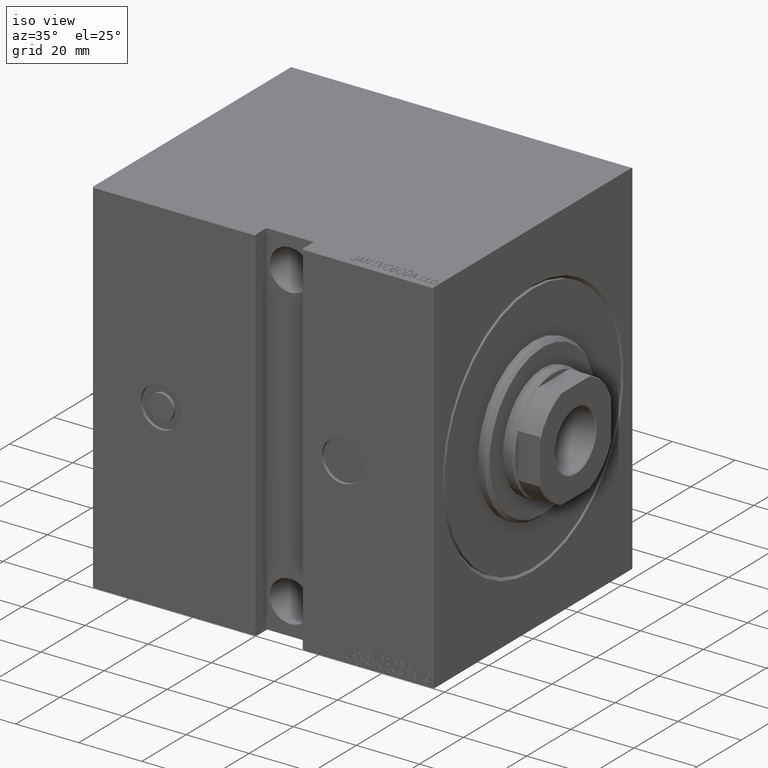
[diagram: clean part render]
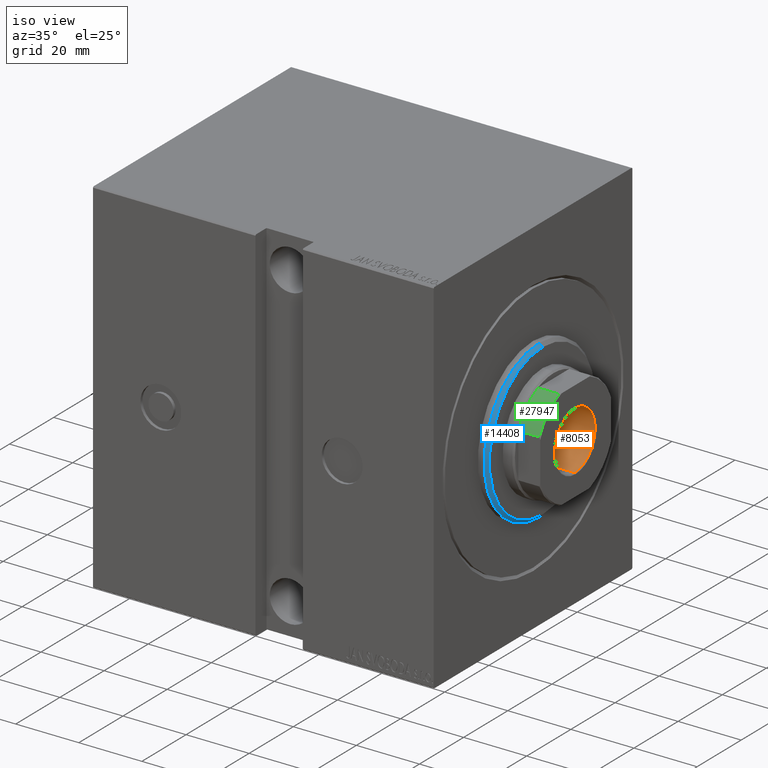
[diagram: same view with three faces highlighted in distinct colors, each labeled with its STEP entity id]
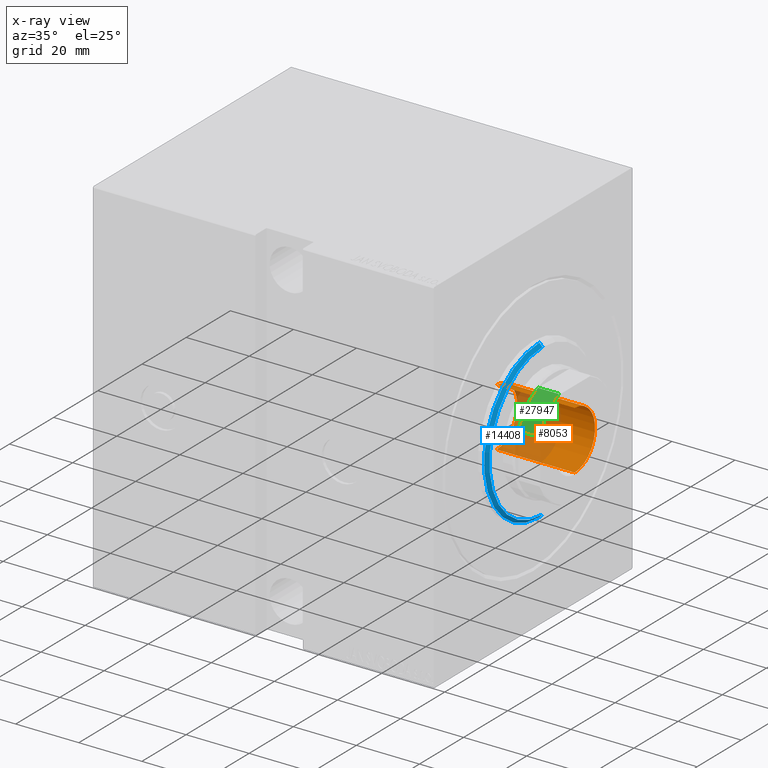
[diagram: x-ray of the same camera — body ghosted, the three highlighted faces saturated]
A machine part, iso view with three faces highlighted in distinct colors.
The next image is the same camera in x-ray (body ghosted, the three faces saturated) — at least one of them is partly hidden behind the body in this view.
Their STEP definitions:

[orange] entity #8053 — the highlighted cylindrical surface (edge-blend (fillet) strip) has radius 9.25 mm, axis along (1, 0, -0).
#326 = CARTESIAN_POINT ( 'NONE',  ( -9.249999999999994671, 1.132798289211300909E-15, 104.0000000000000142 ) ) ;
#754 = DIRECTION ( 'NONE',  ( -0.000000000000000000, -0.000000000000000000, 1.000000000000000000 ) ) ;
#898 = LINE ( 'NONE', #18254, #6088 ) ;
#1081 = DIRECTION ( 'NONE',  ( 0.000000000000000000, 0.000000000000000000, 1.000000000000000000 ) ) ;
#3494 = VECTOR ( 'NONE', #754, 1000.000000000000000 ) ;
#4088 = CARTESIAN_POINT ( 'NONE',  ( -9.249999999999994671, 1.132798289211300909E-15, 79.00000000000001421 ) ) ;
#4434 = VERTEX_POINT ( 'NONE', #7482 ) ;
#6088 = VECTOR ( 'NONE', #25115, 1000.000000000000000 ) ;
#7263 = EDGE_CURVE ( 'NONE', #4434, #11384, #20773, .T. ) ;
#7482 = CARTESIAN_POINT ( 'NONE',  ( 9.249999999999994671, 0.000000000000000000, 103.6999999999999886 ) ) ;
#8053 = ADVANCED_FACE ( 'NONE', ( #31880 ), #24998, .F. ) ;
#8153 = CARTESIAN_POINT ( 'NONE',  ( -9.249999999999994671, 1.132798289211300909E-15, 103.6999999999999886 ) ) ;
#8967 = CIRCLE ( 'NONE', #15827, 9.249999999999994671 ) ;
#10410 = EDGE_LOOP ( 'NONE', ( #19767, #28411, #16762, #40401 ) ) ;
#10976 = DIRECTION ( 'NONE',  ( 1.000000000000000000, 0.000000000000000000, 0.000000000000000000 ) ) ;
#11384 = VERTEX_POINT ( 'NONE', #8153 ) ;
#12188 = CARTESIAN_POINT ( 'NONE',  ( 0.000000000000000000, 0.000000000000000000, 79.00000000000001421 ) ) ;
#15616 = DIRECTION ( 'NONE',  ( 1.000000000000000000, 0.000000000000000000, 0.000000000000000000 ) ) ;
#15827 = AXIS2_PLACEMENT_3D ( 'NONE', #12188, #34547, #15616 ) ;
#16762 = ORIENTED_EDGE ( 'NONE', *, *, #29061, .T. ) ;
#18254 = CARTESIAN_POINT ( 'NONE',  ( 9.249999999999994671, 0.000000000000000000, 104.0000000000000142 ) ) ;
#19767 = ORIENTED_EDGE ( 'NONE', *, *, #35238, .F. ) ;
#20773 = CIRCLE ( 'NONE', #30412, 9.249999999999994671 ) ;
#21776 = DIRECTION ( 'NONE',  ( 1.000000000000000000, 0.000000000000000000, 0.000000000000000000 ) ) ;
#24998 = CYLINDRICAL_SURFACE ( 'NONE', #35937, 9.249999999999994671 ) ;
#25115 = DIRECTION ( 'NONE',  ( -0.000000000000000000, -0.000000000000000000, 1.000000000000000000 ) ) ;
#28411 = ORIENTED_EDGE ( 'NONE', *, *, #41366, .F. ) ;
#29061 = EDGE_CURVE ( 'NONE', #40145, #4434, #898, .T. ) ;
#30412 = AXIS2_PLACEMENT_3D ( 'NONE', #30524, #1081, #10976 ) ;
#30524 = CARTESIAN_POINT ( 'NONE',  ( 0.000000000000000000, 0.000000000000000000, 103.6999999999999886 ) ) ;
#31462 = CARTESIAN_POINT ( 'NONE',  ( 0.000000000000000000, 0.000000000000000000, 104.0000000000000142 ) ) ;
#31880 = FACE_OUTER_BOUND ( 'NONE', #10410, .T. ) ;
#32814 = CARTESIAN_POINT ( 'NONE',  ( 9.249999999999994671, 0.000000000000000000, 79.00000000000001421 ) ) ;
#34547 = DIRECTION ( 'NONE',  ( -0.000000000000000000, -0.000000000000000000, 1.000000000000000000 ) ) ;
#35238 = EDGE_CURVE ( 'NONE', #35462, #11384, #36646, .T. ) ;
#35462 = VERTEX_POINT ( 'NONE', #4088 ) ;
#35937 = AXIS2_PLACEMENT_3D ( 'NONE', #31462, #38116, #21776 ) ;
#36646 = LINE ( 'NONE', #326, #3494 ) ;
#38116 = DIRECTION ( 'NONE',  ( -0.000000000000000000, -0.000000000000000000, 1.000000000000000000 ) ) ;
#40145 = VERTEX_POINT ( 'NONE', #32814 ) ;
#40401 = ORIENTED_EDGE ( 'NONE', *, *, #7263, .T. ) ;
#41366 = EDGE_CURVE ( 'NONE', #40145, #35462, #8967, .T. ) ;

[blue] entity #14408 — the highlighted conical surface has half-angle 45 deg.
#295 = FACE_OUTER_BOUND ( 'NONE', #20194, .T. ) ;
#458 = AXIS2_PLACEMENT_3D ( 'NONE', #33120, #20436, #13568 ) ;
#2974 = VERTEX_POINT ( 'NONE', #31055 ) ;
#3739 = DIRECTION ( 'NONE',  ( 0.000000000000000000, 0.000000000000000000, 1.000000000000000000 ) ) ;
#4348 = VERTEX_POINT ( 'NONE', #28999 ) ;
#4824 = VECTOR ( 'NONE', #42325, 1000.000000000000000 ) ;
#5182 = CARTESIAN_POINT ( 'NONE',  ( 1.999999999999988676, 0.000000000000000000, 0.000000000000000000 ) ) ;
#6175 = CARTESIAN_POINT ( 'NONE',  ( 3.000000000000000000, 0.000000000000000000, 23.99999999999997868 ) ) ;
#7740 = VERTEX_POINT ( 'NONE', #24789 ) ;
#13410 = CARTESIAN_POINT ( 'NONE',  ( 3.000000000000000000, 0.000000000000000000, 0.000000000000000000 ) ) ;
#13568 = DIRECTION ( 'NONE',  ( 0.000000000000000000, 0.000000000000000000, -1.000000000000000000 ) ) ;
#14408 = ADVANCED_FACE ( 'NONE', ( #295 ), #27817, .T. ) ;
#15576 = CIRCLE ( 'NONE', #458, 23.99999999999997868 ) ;
#17828 = CIRCLE ( 'NONE', #18521, 25.00000000000000000 ) ;
#18124 = EDGE_CURVE ( 'NONE', #4348, #7740, #36230, .T. ) ;
#18433 = EDGE_CURVE ( 'NONE', #4348, #41837, #15576, .T. ) ;
#18521 = AXIS2_PLACEMENT_3D ( 'NONE', #5182, #41698, #35037 ) ;
#19052 = ORIENTED_EDGE ( 'NONE', *, *, #31035, .F. ) ;
#19279 = DIRECTION ( 'NONE',  ( -0.7071067811865439090, 0.000000000000000000, 0.7071067811865512365 ) ) ;
#20194 = EDGE_LOOP ( 'NONE', ( #34384, #26955, #36630, #19052 ) ) ;
#20273 = DIRECTION ( 'NONE',  ( -1.000000000000000000, 0.000000000000000000, 0.000000000000000000 ) ) ;
#20436 = DIRECTION ( 'NONE',  ( 1.000000000000000000, -0.000000000000000000, 0.000000000000000000 ) ) ;
#22757 = CARTESIAN_POINT ( 'NONE',  ( 3.000000000000000000, 2.939152317953645133E-15, -23.99999999999997868 ) ) ;
#24492 = CARTESIAN_POINT ( 'NONE',  ( 3.000000000000000000, 3.000384657911014285E-15, -23.99999999999997868 ) ) ;
#24789 = CARTESIAN_POINT ( 'NONE',  ( 1.999999999999988676, 0.000000000000000000, 25.00000000000000000 ) ) ;
#26955 = ORIENTED_EDGE ( 'NONE', *, *, #18433, .F. ) ;
#27817 = CONICAL_SURFACE ( 'NONE', #34694, 23.99999999999997868, 0.7853981633974533860 ) ;
#28999 = CARTESIAN_POINT ( 'NONE',  ( 3.000000000000000000, 0.000000000000000000, 23.99999999999997868 ) ) ;
#29218 = LINE ( 'NONE', #22757, #4824 ) ;
#31035 = EDGE_CURVE ( 'NONE', #2974, #7740, #17828, .T. ) ;
#31055 = CARTESIAN_POINT ( 'NONE',  ( 1.999999999999988676, 3.061616997868383043E-15, -25.00000000000000000 ) ) ;
#31351 = VECTOR ( 'NONE', #19279, 1000.000000000000000 ) ;
#33120 = CARTESIAN_POINT ( 'NONE',  ( 3.000000000000000000, 0.000000000000000000, 0.000000000000000000 ) ) ;
#34384 = ORIENTED_EDGE ( 'NONE', *, *, #39171, .F. ) ;
#34694 = AXIS2_PLACEMENT_3D ( 'NONE', #13410, #20273, #3739 ) ;
#35037 = DIRECTION ( 'NONE',  ( 0.000000000000000000, 0.000000000000000000, -1.000000000000000000 ) ) ;
#36230 = LINE ( 'NONE', #6175, #31351 ) ;
#36630 = ORIENTED_EDGE ( 'NONE', *, *, #18124, .T. ) ;
#39171 = EDGE_CURVE ( 'NONE', #41837, #2974, #29218, .T. ) ;
#41698 = DIRECTION ( 'NONE',  ( -1.000000000000000000, 0.000000000000000000, 0.000000000000000000 ) ) ;
#41837 = VERTEX_POINT ( 'NONE', #24492 ) ;
#42325 = DIRECTION ( 'NONE',  ( -0.7071067811865439090, 8.659560562354979697E-17, -0.7071067811865512365 ) ) ;

[green] entity #27947 — the highlighted cylindrical surface (partial cylindrical patch) has radius 17.5 mm, axis along (1, 0, -0).
#454 = DIRECTION ( 'NONE',  ( -0.000000000000000000, -0.000000000000000000, 1.000000000000000000 ) ) ;
#1203 = AXIS2_PLACEMENT_3D ( 'NONE', #28863, #15540, #18774 ) ;
#1262 = AXIS2_PLACEMENT_3D ( 'NONE', #17647, #454, #11217 ) ;
#2459 = LINE ( 'NONE', #15773, #26322 ) ;
#3391 = VERTEX_POINT ( 'NONE', #20355 ) ;
#6369 = CIRCLE ( 'NONE', #20775, 17.50000000000002842 ) ;
#8089 = VECTOR ( 'NONE', #37580, 1000.000000000000000 ) ;
#8704 = DIRECTION ( 'NONE',  ( -0.000000000000000000, -0.000000000000000000, 1.000000000000000000 ) ) ;
#9872 = EDGE_CURVE ( 'NONE', #12500, #25857, #2459, .T. ) ;
#11217 = DIRECTION ( 'NONE',  ( 1.000000000000000000, 0.000000000000000000, 0.000000000000000000 ) ) ;
#12500 = VERTEX_POINT ( 'NONE', #31951 ) ;
#14526 = CARTESIAN_POINT ( 'NONE',  ( -16.00000000000000355, -7.088723439378912694, 97.00000000000002842 ) ) ;
#14865 = DIRECTION ( 'NONE',  ( 1.000000000000000000, 0.000000000000000000, 0.000000000000000000 ) ) ;
#15540 = DIRECTION ( 'NONE',  ( -0.000000000000000000, -0.000000000000000000, -1.000000000000000000 ) ) ;
#15773 = CARTESIAN_POINT ( 'NONE',  ( -7.088723439378916247, -16.00000000000000000, -0.001000000000001000089 ) ) ;
#17647 = CARTESIAN_POINT ( 'NONE',  ( 0.000000000000000000, 0.000000000000000000, -0.001000000000001000089 ) ) ;
#18774 = DIRECTION ( 'NONE',  ( 1.000000000000000000, 8.881784197001252323E-16, 0.000000000000000000 ) ) ;
#20355 = CARTESIAN_POINT ( 'NONE',  ( -16.00000000000000355, -7.088723439378912694, 103.7000000000000313 ) ) ;
#20652 = EDGE_CURVE ( 'NONE', #25857, #3391, #30620, .T. ) ;
#20775 = AXIS2_PLACEMENT_3D ( 'NONE', #37852, #34192, #14865 ) ;
#20871 = CYLINDRICAL_SURFACE ( 'NONE', #1262, 17.50000000000000000 ) ;
#21108 = EDGE_CURVE ( 'NONE', #31169, #3391, #24682, .T. ) ;
#24682 = LINE ( 'NONE', #38018, #8089 ) ;
#25857 = VERTEX_POINT ( 'NONE', #26785 ) ;
#26322 = VECTOR ( 'NONE', #8704, 1000.000000000000000 ) ;
#26785 = CARTESIAN_POINT ( 'NONE',  ( -7.088723439378916247, -16.00000000000000000, 103.7000000000000313 ) ) ;
#27947 = ADVANCED_FACE ( 'NONE', ( #29904 ), #20871, .T. ) ;
#28863 = CARTESIAN_POINT ( 'NONE',  ( 0.000000000000000000, 0.000000000000000000, 103.7000000000000313 ) ) ;
#29904 = FACE_OUTER_BOUND ( 'NONE', #41533, .T. ) ;
#30305 = ORIENTED_EDGE ( 'NONE', *, *, #20652, .T. ) ;
#30620 = CIRCLE ( 'NONE', #1203, 17.50000000000000000 ) ;
#31169 = VERTEX_POINT ( 'NONE', #14526 ) ;
#31951 = CARTESIAN_POINT ( 'NONE',  ( -7.088723439378916247, -16.00000000000000000, 97.00000000000002842 ) ) ;
#33818 = ORIENTED_EDGE ( 'NONE', *, *, #9872, .T. ) ;
#34192 = DIRECTION ( 'NONE',  ( 0.000000000000000000, 0.000000000000000000, 1.000000000000000000 ) ) ;
#35694 = ORIENTED_EDGE ( 'NONE', *, *, #21108, .F. ) ;
#37415 = EDGE_CURVE ( 'NONE', #31169, #12500, #6369, .T. ) ;
#37580 = DIRECTION ( 'NONE',  ( -0.000000000000000000, -0.000000000000000000, 1.000000000000000000 ) ) ;
#37852 = CARTESIAN_POINT ( 'NONE',  ( 0.000000000000000000, 0.000000000000000000, 97.00000000000000000 ) ) ;
#38018 = CARTESIAN_POINT ( 'NONE',  ( -16.00000000000000355, -7.088723439378912694, -0.001000000000001000089 ) ) ;
#41533 = EDGE_LOOP ( 'NONE', ( #33818, #30305, #35694, #41742 ) ) ;
#41742 = ORIENTED_EDGE ( 'NONE', *, *, #37415, .T. ) ;